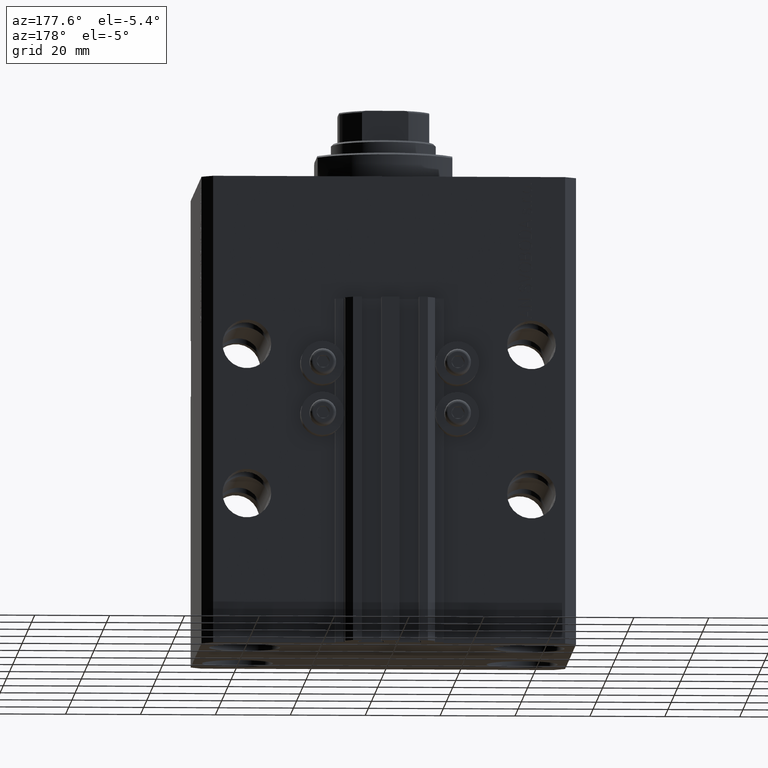
[diagram: clean part render]
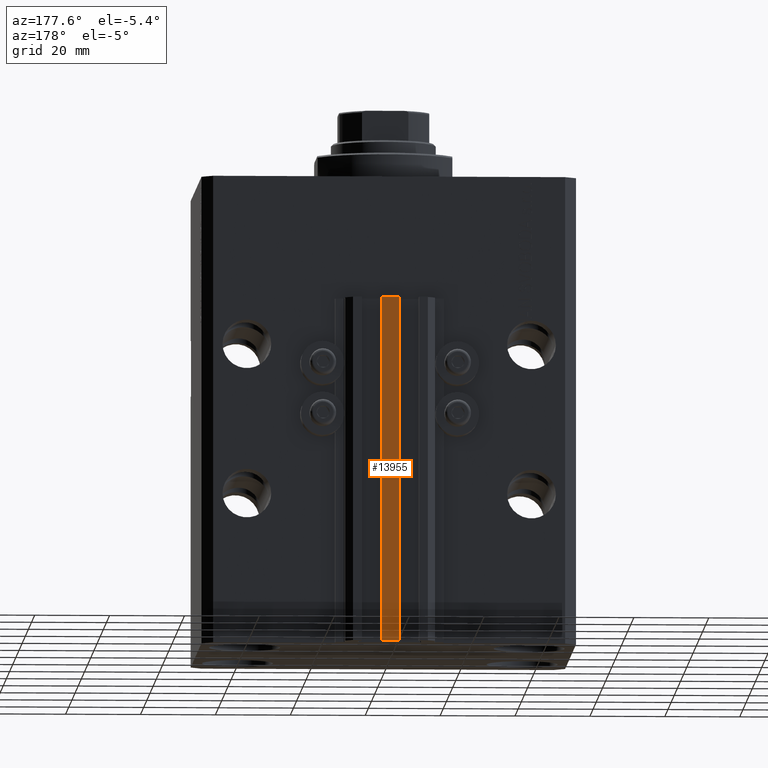
[diagram: same view with one face highlighted and labeled with its STEP entity id]
A machine part, auxiliary view. The second image highlights one B-rep face of the part: STEP entity #13955.
In plain terms, the highlighted planar face has unit normal (0, -1, 0).
Its self-contained STEP definition (entity closure, byte-faithful):
#444 = CARTESIAN_POINT ( 'NONE',  ( -2.350000000000003642, 45.50000000000000711, -33.00000000000000000 ) ) ;
#4939 = CARTESIAN_POINT ( 'NONE',  ( 2.349999999999999645, 45.50000000000000711, -33.00000000000000000 ) ) ;
#5379 = LINE ( 'NONE', #31438, #30858 ) ;
#5999 = ORIENTED_EDGE ( 'NONE', *, *, #47684, .T. ) ;
#6765 = ORIENTED_EDGE ( 'NONE', *, *, #14896, .F. ) ;
#6911 = LINE ( 'NONE', #18103, #32325 ) ;
#8009 = EDGE_CURVE ( 'NONE', #40621, #10945, #18935, .T. ) ;
#10945 = VERTEX_POINT ( 'NONE', #4939 ) ;
#11867 = CARTESIAN_POINT ( 'NONE',  ( -2.350000000000003642, 45.50000000000000711, -33.00000000000000000 ) ) ;
#13955 = ADVANCED_FACE ( 'NONE', ( #38188 ), #18906, .F. ) ;
#14896 = EDGE_CURVE ( 'NONE', #31614, #47003, #5379, .T. ) ;
#15033 = CARTESIAN_POINT ( 'NONE',  ( -2.350000000000003642, 45.50000000000000711, -125.0000000000000000 ) ) ;
#18103 = CARTESIAN_POINT ( 'NONE',  ( 2.349999999999999645, 45.50000000000000711, -125.0000000000000000 ) ) ;
#18211 = ORIENTED_EDGE ( 'NONE', *, *, #8009, .T. ) ;
#18215 = DIRECTION ( 'NONE',  ( 0.000000000000000000, 0.000000000000000000, 1.000000000000000000 ) ) ;
#18906 = PLANE ( 'NONE',  #46385 ) ;
#18935 = LINE ( 'NONE', #444, #21352 ) ;
#19398 = DIRECTION ( 'NONE',  ( 0.000000000000000000, -1.000000000000000000, 0.000000000000000000 ) ) ;
#21352 = VECTOR ( 'NONE', #38220, 1000.000000000000000 ) ;
#21528 = DIRECTION ( 'NONE',  ( 0.000000000000000000, 0.000000000000000000, 1.000000000000000000 ) ) ;
#21640 = LINE ( 'NONE', #15033, #30203 ) ;
#25365 = ORIENTED_EDGE ( 'NONE', *, *, #41144, .F. ) ;
#27173 = CARTESIAN_POINT ( 'NONE',  ( 2.349999999999999645, 45.50000000000000711, -125.0000000000000000 ) ) ;
#30203 = VECTOR ( 'NONE', #18215, 1000.000000000000000 ) ;
#30858 = VECTOR ( 'NONE', #46319, 1000.000000000000000 ) ;
#31438 = CARTESIAN_POINT ( 'NONE',  ( -2.350000000000003642, 45.50000000000000711, -125.0000000000000000 ) ) ;
#31614 = VERTEX_POINT ( 'NONE', #46540 ) ;
#32325 = VECTOR ( 'NONE', #21528, 1000.000000000000000 ) ;
#34718 = EDGE_LOOP ( 'NONE', ( #18211, #25365, #6765, #5999 ) ) ;
#38188 = FACE_OUTER_BOUND ( 'NONE', #34718, .T. ) ;
#38220 = DIRECTION ( 'NONE',  ( 1.000000000000000000, 0.000000000000000000, 0.000000000000000000 ) ) ;
#40621 = VERTEX_POINT ( 'NONE', #11867 ) ;
#41144 = EDGE_CURVE ( 'NONE', #47003, #10945, #6911, .T. ) ;
#41346 = CARTESIAN_POINT ( 'NONE',  ( -2.350000000000003642, 45.50000000000000711, -125.0000000000000000 ) ) ;
#45484 = DIRECTION ( 'NONE',  ( 0.000000000000000000, -0.000000000000000000, -1.000000000000000000 ) ) ;
#46319 = DIRECTION ( 'NONE',  ( 1.000000000000000000, 0.000000000000000000, 0.000000000000000000 ) ) ;
#46385 = AXIS2_PLACEMENT_3D ( 'NONE', #41346, #19398, #45484 ) ;
#46540 = CARTESIAN_POINT ( 'NONE',  ( -2.350000000000003642, 45.50000000000000711, -125.0000000000000000 ) ) ;
#47003 = VERTEX_POINT ( 'NONE', #27173 ) ;
#47684 = EDGE_CURVE ( 'NONE', #31614, #40621, #21640, .T. ) ;